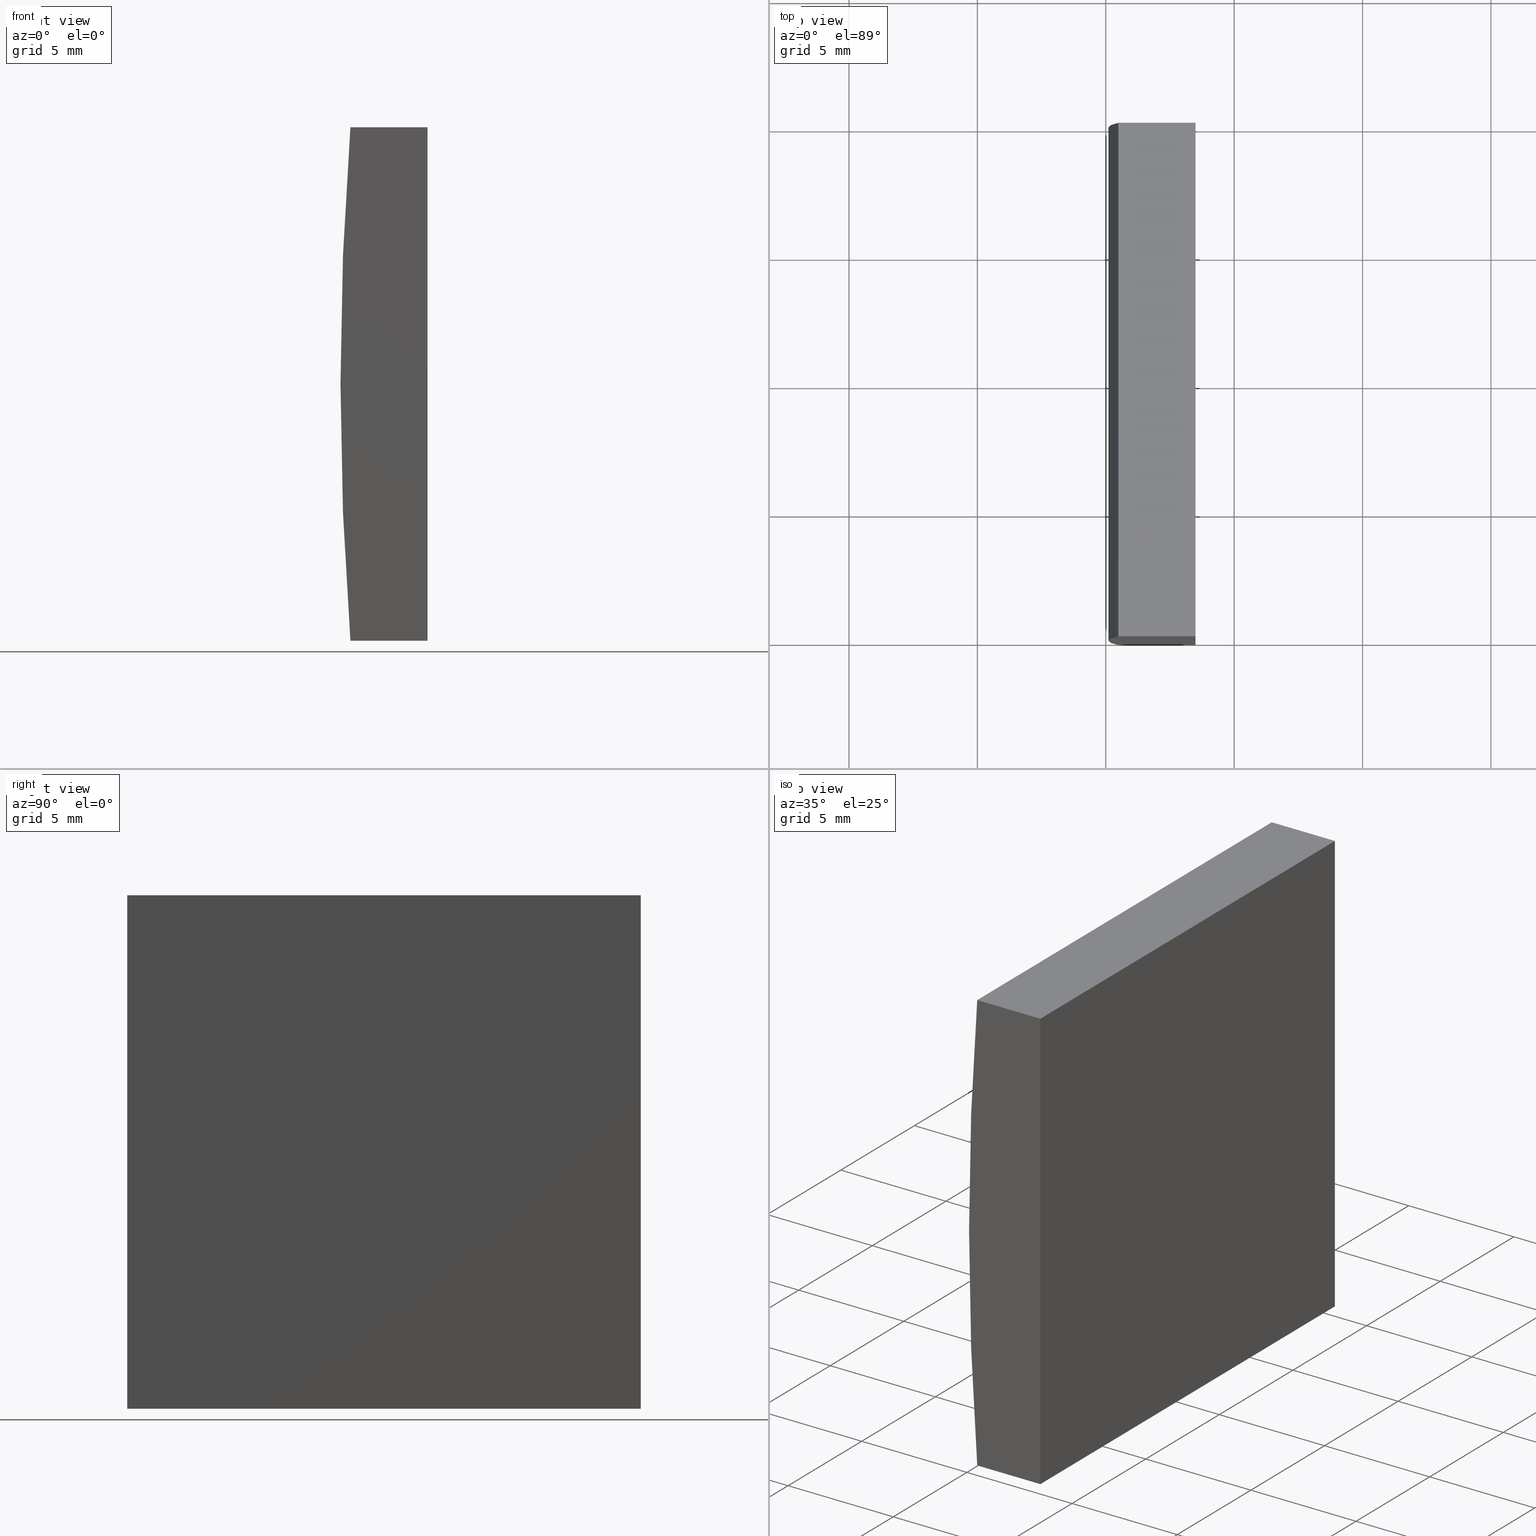
[diagram: canonical four-view strip — front | top / right | iso, engineering-drawing reading convention]
A machine part, canonical four-view strip (front | top / right | iso — engineering-drawing reading convention). The complete STEP part file that produces these views, byte-faithful:
ISO-10303-21;
HEADER;
FILE_DESCRIPTION (( 'STEP AP214' ),
    '1' );
FILE_NAME ('155034.STEP',
    '2019-06-17T07:06:26',
    ( 'user' ),
    ( '΢���й�' ),
    'SwSTEP 2.0',
    'SolidWorks 2016',
    '' );
FILE_SCHEMA (( 'AUTOMOTIVE_DESIGN' ));
ENDSEC;

DATA;
#1 = EDGE_LOOP ( 'NONE', ( #55, #82, #138, #10 ) ) ;
#2 = ORIENTED_EDGE ( 'NONE', *, *, #152, .F. ) ;
#3 = EDGE_LOOP ( 'NONE', ( #9, #2, #160, #189 ) ) ;
#4 = APPLICATION_CONTEXT ( 'automotive_design' ) ;
#5 = CLOSED_SHELL ( 'NONE', ( #146, #99, #86, #65, #96, #31 ) ) ;
#6 = PRODUCT_DEFINITION_CONTEXT ( 'detailed design', #4, 'design' ) ;
#7 = AXIS2_PLACEMENT_3D ( 'NONE', #140, #60, #180 ) ;
#8 = VECTOR ( 'NONE', #92, 1000.000000000000000 ) ;
#9 = ORIENTED_EDGE ( 'NONE', *, *, #134, .T. ) ;
#10 = ORIENTED_EDGE ( 'NONE', *, *, #77, .T. ) ;
#11 = DIRECTION ( 'NONE',  ( 0.0000000000000000000, 0.0000000000000000000, 1.000000000000000000 ) ) ;
#12 = ORIENTED_EDGE ( 'NONE', *, *, #51, .F. ) ;
#13 = ORIENTED_EDGE ( 'NONE', *, *, #115, .T. ) ;
#14 = AXIS2_PLACEMENT_3D ( 'NONE', #179, #62, #164 ) ;
#15 = CARTESIAN_POINT ( 'NONE',  ( -121.5047956651487300, 0.0000000000000000000, 10.00000000000000000 ) ) ;
#16 = ORIENTED_EDGE ( 'NONE', *, *, #187, .T. ) ;
#17 = ORIENTED_EDGE ( 'NONE', *, *, #51, .T. ) ;
#18 = CARTESIAN_POINT ( 'NONE',  ( 4.355204334851265500, 20.00000000000000000, 4.286263797015675000E-017 ) ) ;
#19 = DIRECTION ( 'NONE',  ( 1.155491619726084100E-015, -0.0000000000000000000, 1.000000000000000000 ) ) ;
#20 = AXIS2_PLACEMENT_3D ( 'NONE', #183, #19, #124 ) ;
#21 = EDGE_LOOP ( 'NONE', ( #33, #35, #12, #16 ) ) ;
#22 = VECTOR ( 'NONE', #114, 1000.000000000000000 ) ;
#23 = PRODUCT_DEFINITION_FORMATION_WITH_SPECIFIED_SOURCE ( '�κ�', '', #36, .NOT_KNOWN. ) ;
#24 = FILL_AREA_STYLE ('',( #184 ) ) ;
#25 = CIRCLE ( 'NONE', #171, 129.2500000000000000 ) ;
#26 = DIRECTION ( 'NONE',  ( -1.000000000000000000, -0.0000000000000000000, 1.155491619726083900E-015 ) ) ;
#27 = CARTESIAN_POINT ( 'NONE',  ( -124.5073678108264800, 20.00000000000000000, 10.00000000000000000 ) ) ;
#28 = VECTOR ( 'NONE', #131, 1000.000000000000000 ) ;
#29 = PLANE ( 'NONE',  #7 ) ;
#30 = VERTEX_POINT ( 'NONE', #175 ) ;
#31 = ADVANCED_FACE ( 'NONE', ( #182 ), #165, .F. ) ;
#32 = DIRECTION ( 'NONE',  ( -0.0000000000000000000, -1.000000000000000000, -0.0000000000000000000 ) ) ;
#33 = ORIENTED_EDGE ( 'NONE', *, *, #107, .T. ) ;
#34 = AXIS2_PLACEMENT_3D ( 'NONE', #198, #106, #94 ) ;
#35 = ORIENTED_EDGE ( 'NONE', *, *, #154, .F. ) ;
#36 = PRODUCT ( '155034', '155034', '', ( #162 ) ) ;
#37 =( NAMED_UNIT ( * ) PLANE_ANGLE_UNIT ( ) SI_UNIT ( $, .RADIAN. ) );
#38 = PRESENTATION_STYLE_ASSIGNMENT (( #150 ) ) ;
#39 = DIRECTION ( 'NONE',  ( -0.0000000000000000000, -0.0000000000000000000, -1.000000000000000000 ) ) ;
#40 = CARTESIAN_POINT ( 'NONE',  ( -124.5073678108264800, 20.00000000000000000, 10.00000000000000000 ) ) ;
#41 = AXIS2_PLACEMENT_3D ( 'NONE', #153, #89, #166 ) ;
#42 = UNCERTAINTY_MEASURE_WITH_UNIT (LENGTH_MEASURE( 1.000000000000000100E-005 ), #59, 'distance_accuracy_value', 'NONE');
#43 = LINE ( 'NONE', #40, #48 ) ;
#44 = FILL_AREA_STYLE_COLOUR ( '', #170 ) ;
#45 = ORIENTED_EDGE ( 'NONE', *, *, #125, .T. ) ;
#46 = ORIENTED_EDGE ( 'NONE', *, *, #158, .F. ) ;
#47 = LINE ( 'NONE', #75, #84 ) ;
#48 = VECTOR ( 'NONE', #141, 1000.000000000000000 ) ;
#49 = APPLICATION_PROTOCOL_DEFINITION ( 'draft international standard', 'automotive_design', 1998, #193 ) ;
#50 = DIRECTION ( 'NONE',  ( 0.0000000000000000000, 0.0000000000000000000, -1.000000000000000000 ) ) ;
#51 = EDGE_CURVE ( 'NONE', #130, #118, #110, .T. ) ;
#52 = EDGE_LOOP ( 'NONE', ( #45, #64, #46, #200 ) ) ;
#53 = CARTESIAN_POINT ( 'NONE',  ( -121.5047956651487300, 20.00000000000000000, -10.00000000000000400 ) ) ;
#54 = PRESENTATION_STYLE_ASSIGNMENT (( #123 ) ) ;
#55 = ORIENTED_EDGE ( 'NONE', *, *, #202, .T. ) ;
#56 = EDGE_LOOP ( 'NONE', ( #186, #91, #78, #105 ) ) ;
#57 = FACE_OUTER_BOUND ( 'NONE', #1, .T. ) ;
#58 = VERTEX_POINT ( 'NONE', #199 ) ;
#59 =( LENGTH_UNIT ( ) NAMED_UNIT ( * ) SI_UNIT ( .MILLI., .METRE. ) );
#60 = DIRECTION ( 'NONE',  ( -1.000000000000000000, 0.0000000000000000000, 0.0000000000000000000 ) ) ;
#61 = FACE_OUTER_BOUND ( 'NONE', #196, .T. ) ;
#62 = DIRECTION ( 'NONE',  ( 0.0000000000000000000, 1.000000000000000000, 0.0000000000000000000 ) ) ;
#63 = MECHANICAL_DESIGN_GEOMETRIC_PRESENTATION_REPRESENTATION (  '', ( #122 ), #176 ) ;
#64 = ORIENTED_EDGE ( 'NONE', *, *, #77, .F. ) ;
#65 = ADVANCED_FACE ( 'NONE', ( #57 ), #172, .F. ) ;
#66 = CARTESIAN_POINT ( 'NONE',  ( 4.355204334851265500, 0.0000000000000000000, 4.286263797015675000E-017 ) ) ;
#67 = CARTESIAN_POINT ( 'NONE',  ( -121.5047956651487300, 20.00000000000000000, -10.00000000000000400 ) ) ;
#68 = MECHANICAL_DESIGN_GEOMETRIC_PRESENTATION_REPRESENTATION (  '', ( #137 ), #95 ) ;
#69 = CARTESIAN_POINT ( 'NONE',  ( -124.5073678108264900, 0.0000000000000000000, -10.00000000000000000 ) ) ;
#70 = APPLICATION_PROTOCOL_DEFINITION ( 'draft international standard', 'automotive_design', 1998, #4 ) ;
#71 = FACE_OUTER_BOUND ( 'NONE', #3, .T. ) ;
#72 = VECTOR ( 'NONE', #83, 1000.000000000000000 ) ;
#73 = PRESENTATION_LAYER_ASSIGNMENT (  '', '', ( #137 ) ) ;
#74 = VERTEX_POINT ( 'NONE', #129 ) ;
#75 = CARTESIAN_POINT ( 'NONE',  ( -121.5047956651487300, 20.00000000000000000, 10.00000000000000000 ) ) ;
#76 = LINE ( 'NONE', #139, #28 ) ;
#77 = EDGE_CURVE ( 'NONE', #81, #30, #117, .T. ) ;
#78 = ORIENTED_EDGE ( 'NONE', *, *, #125, .F. ) ;
#79 = SHAPE_DEFINITION_REPRESENTATION ( #201, #132 ) ;
#80 = CARTESIAN_POINT ( 'NONE',  ( -124.5073678108264900, 20.00000000000000000, -10.00000000000000000 ) ) ;
#81 = VERTEX_POINT ( 'NONE', #157 ) ;
#82 = ORIENTED_EDGE ( 'NONE', *, *, #187, .F. ) ;
#83 = DIRECTION ( 'NONE',  ( -0.0000000000000000000, -0.0000000000000000000, -1.000000000000000000 ) ) ;
#84 = VECTOR ( 'NONE', #147, 1000.000000000000000 ) ;
#85 = FACE_OUTER_BOUND ( 'NONE', #21, .T. ) ;
#86 = ADVANCED_FACE ( 'NONE', ( #173 ), #29, .F. ) ;
#87 = VERTEX_POINT ( 'NONE', #15 ) ;
#88 = AXIS2_PLACEMENT_3D ( 'NONE', #66, #204, #143 ) ;
#89 = DIRECTION ( 'NONE',  ( 0.0000000000000000000, 0.0000000000000000000, 1.000000000000000000 ) ) ;
#90 = LINE ( 'NONE', #174, #195 ) ;
#91 = ORIENTED_EDGE ( 'NONE', *, *, #202, .F. ) ;
#92 = DIRECTION ( 'NONE',  ( 1.000000000000000000, 0.0000000000000000000, 0.0000000000000000000 ) ) ;
#93 = DIRECTION ( 'NONE',  ( 0.0000000000000000000, 1.000000000000000000, 0.0000000000000000000 ) ) ;
#94 = DIRECTION ( 'NONE',  ( 0.0000000000000000000, 0.0000000000000000000, 1.000000000000000000 ) ) ;
#95 =( GEOMETRIC_REPRESENTATION_CONTEXT ( 3 ) GLOBAL_UNCERTAINTY_ASSIGNED_CONTEXT ( ( #155 ) ) GLOBAL_UNIT_ASSIGNED_CONTEXT ( ( #108, #104, #178 ) ) REPRESENTATION_CONTEXT ( 'NONE', 'WORKASPACE' ) );
#96 = ADVANCED_FACE ( 'NONE', ( #61 ), #100, .T. ) ;
#97 = CARTESIAN_POINT ( 'NONE',  ( -124.5073678108264900, 20.00000000000000000, -10.00000000000000000 ) ) ;
#98 = VECTOR ( 'NONE', #32, 1000.000000000000000 ) ;
#99 = ADVANCED_FACE ( 'NONE', ( #71 ), #188, .F. ) ;
#100 = PLANE ( 'NONE',  #14 ) ;
#101 = PRODUCT_DEFINITION ( 'δ֪', '', #23, #6 ) ;
#102 = LINE ( 'NONE', #161, #144 ) ;
#103 = DIRECTION ( 'NONE',  ( -1.000000000000000000, 0.0000000000000000000, -0.0000000000000000000 ) ) ;
#104 =( NAMED_UNIT ( * ) PLANE_ANGLE_UNIT ( ) SI_UNIT ( $, .RADIAN. ) );
#105 = ORIENTED_EDGE ( 'NONE', *, *, #134, .F. ) ;
#106 = DIRECTION ( 'NONE',  ( 0.0000000000000000000, 1.000000000000000000, 0.0000000000000000000 ) ) ;
#107 = EDGE_CURVE ( 'NONE', #149, #74, #25, .T. ) ;
#108 =( LENGTH_UNIT ( ) NAMED_UNIT ( * ) SI_UNIT ( .MILLI., .METRE. ) );
#109 = SURFACE_STYLE_FILL_AREA ( #127 ) ;
#110 = CIRCLE ( 'NONE', #34, 129.2500000000000000 ) ;
#111 =( NAMED_UNIT ( * ) SI_UNIT ( $, .STERADIAN. ) SOLID_ANGLE_UNIT ( ) );
#112 = LINE ( 'NONE', #69, #22 ) ;
#113 = CARTESIAN_POINT ( 'NONE',  ( -124.5073678108264800, 20.00000000000000000, 10.00000000000000000 ) ) ;
#114 = DIRECTION ( 'NONE',  ( -1.000000000000000000, -0.0000000000000000000, 1.155491619726083900E-015 ) ) ;
#115 = EDGE_CURVE ( 'NONE', #81, #130, #102, .T. ) ;
#116 = LINE ( 'NONE', #67, #72 ) ;
#117 = LINE ( 'NONE', #53, #120 ) ;
#118 = VERTEX_POINT ( 'NONE', #113 ) ;
#119 = PRODUCT_RELATED_PRODUCT_CATEGORY ( 'part', '', ( #36 ) ) ;
#120 = VECTOR ( 'NONE', #185, 1000.000000000000000 ) ;
#121 = SURFACE_STYLE_FILL_AREA ( #24 ) ;
#122 = STYLED_ITEM ( 'NONE', ( #38 ), #132 ) ;
#123 = SURFACE_STYLE_USAGE ( .BOTH. , #128 ) ;
#124 = DIRECTION ( 'NONE',  ( 1.000000000000000000, 0.0000000000000000000, -1.155491619726084100E-015 ) ) ;
#125 = EDGE_CURVE ( 'NONE', #87, #30, #90, .T. ) ;
#126 =( LENGTH_UNIT ( ) NAMED_UNIT ( * ) SI_UNIT ( .MILLI., .METRE. ) );
#127 = FILL_AREA_STYLE ('',( #44 ) ) ;
#128 = SURFACE_SIDE_STYLE ('',( #109 ) ) ;
#129 = CARTESIAN_POINT ( 'NONE',  ( -124.5073678108264800, 0.0000000000000000000, 10.00000000000000000 ) ) ;
#130 = VERTEX_POINT ( 'NONE', #80 ) ;
#131 = DIRECTION ( 'NONE',  ( 1.000000000000000000, 0.0000000000000000000, 0.0000000000000000000 ) ) ;
#132 = ADVANCED_BREP_SHAPE_REPRESENTATION ( '155034', ( #191, #41 ), #190 ) ;
#133 = LINE ( 'NONE', #135, #8 ) ;
#134 = EDGE_CURVE ( 'NONE', #74, #87, #133, .T. ) ;
#135 = CARTESIAN_POINT ( 'NONE',  ( -124.5073678108264800, 0.0000000000000000000, 10.00000000000000000 ) ) ;
#136 = UNCERTAINTY_MEASURE_WITH_UNIT (LENGTH_MEASURE( 1.000000000000000100E-005 ), #126, 'distance_accuracy_value', 'NONE');
#137 = STYLED_ITEM ( 'NONE', ( #54 ), #191 ) ;
#138 = ORIENTED_EDGE ( 'NONE', *, *, #115, .F. ) ;
#139 = CARTESIAN_POINT ( 'NONE',  ( -124.5073678108264800, 20.00000000000000000, 10.00000000000000000 ) ) ;
#140 = CARTESIAN_POINT ( 'NONE',  ( -121.5047956651487300, 20.00000000000000000, -10.00000000000000400 ) ) ;
#141 = DIRECTION ( 'NONE',  ( -0.0000000000000000000, -1.000000000000000000, -0.0000000000000000000 ) ) ;
#142 = EDGE_CURVE ( 'NONE', #118, #58, #76, .T. ) ;
#143 = DIRECTION ( 'NONE',  ( 0.0000000000000000000, -0.0000000000000000000, 1.000000000000000000 ) ) ;
#144 = VECTOR ( 'NONE', #26, 1000.000000000000000 ) ;
#145 =( NAMED_UNIT ( * ) SI_UNIT ( $, .STERADIAN. ) SOLID_ANGLE_UNIT ( ) );
#146 = ADVANCED_FACE ( 'NONE', ( #85 ), #156, .T. ) ;
#147 = DIRECTION ( 'NONE',  ( -0.0000000000000000000, -1.000000000000000000, -0.0000000000000000000 ) ) ;
#148 = AXIS2_PLACEMENT_3D ( 'NONE', #18, #169, #50 ) ;
#149 = VERTEX_POINT ( 'NONE', #168 ) ;
#150 = SURFACE_STYLE_USAGE ( .BOTH. , #194 ) ;
#151 = ORIENTED_EDGE ( 'NONE', *, *, #142, .T. ) ;
#152 = EDGE_CURVE ( 'NONE', #58, #87, #47, .T. ) ;
#153 = CARTESIAN_POINT ( 'NONE',  ( 0.0000000000000000000, 0.0000000000000000000, 0.0000000000000000000 ) ) ;
#154 = EDGE_CURVE ( 'NONE', #118, #74, #43, .T. ) ;
#155 = UNCERTAINTY_MEASURE_WITH_UNIT (LENGTH_MEASURE( 1.000000000000000100E-005 ), #108, 'distance_accuracy_value', 'NONE');
#156 = CYLINDRICAL_SURFACE ( 'NONE', #148, 129.2500000000000000 ) ;
#157 = CARTESIAN_POINT ( 'NONE',  ( -121.5047956651487300, 20.00000000000000000, -10.00000000000000400 ) ) ;
#158 = EDGE_CURVE ( 'NONE', #58, #81, #116, .T. ) ;
#159 = COLOUR_RGB ( '',1.000000000000000000, 1.000000000000000000, 1.000000000000000000 ) ;
#160 = ORIENTED_EDGE ( 'NONE', *, *, #142, .F. ) ;
#161 = CARTESIAN_POINT ( 'NONE',  ( -124.5073678108264900, 20.00000000000000000, -10.00000000000000000 ) ) ;
#162 = PRODUCT_CONTEXT ( 'NONE', #193, 'mechanical' ) ;
#163 =( NAMED_UNIT ( * ) PLANE_ANGLE_UNIT ( ) SI_UNIT ( $, .RADIAN. ) );
#164 = DIRECTION ( 'NONE',  ( 0.0000000000000000000, -0.0000000000000000000, 1.000000000000000000 ) ) ;
#165 = PLANE ( 'NONE',  #88 ) ;
#166 = DIRECTION ( 'NONE',  ( 1.000000000000000000, 0.0000000000000000000, 0.0000000000000000000 ) ) ;
#167 = AXIS2_PLACEMENT_3D ( 'NONE', #27, #181, #103 ) ;
#168 = CARTESIAN_POINT ( 'NONE',  ( -124.5073678108264900, 0.0000000000000000000, -10.00000000000000000 ) ) ;
#169 = DIRECTION ( 'NONE',  ( -0.0000000000000000000, -1.000000000000000000, -0.0000000000000000000 ) ) ;
#170 = COLOUR_RGB ( '',1.000000000000000000, 1.000000000000000000, 1.000000000000000000 ) ;
#171 = AXIS2_PLACEMENT_3D ( 'NONE', #192, #93, #11 ) ;
#172 = PLANE ( 'NONE',  #20 ) ;
#173 = FACE_OUTER_BOUND ( 'NONE', #52, .T. ) ;
#174 = CARTESIAN_POINT ( 'NONE',  ( -121.5047956651487300, 0.0000000000000000000, -10.00000000000000400 ) ) ;
#175 = CARTESIAN_POINT ( 'NONE',  ( -121.5047956651487300, 0.0000000000000000000, -10.00000000000000400 ) ) ;
#176 =( GEOMETRIC_REPRESENTATION_CONTEXT ( 3 ) GLOBAL_UNCERTAINTY_ASSIGNED_CONTEXT ( ( #136 ) ) GLOBAL_UNIT_ASSIGNED_CONTEXT ( ( #126, #163, #111 ) ) REPRESENTATION_CONTEXT ( 'NONE', 'WORKASPACE' ) );
#177 = ORIENTED_EDGE ( 'NONE', *, *, #158, .T. ) ;
#178 =( NAMED_UNIT ( * ) SI_UNIT ( $, .STERADIAN. ) SOLID_ANGLE_UNIT ( ) );
#179 = CARTESIAN_POINT ( 'NONE',  ( 4.355204334851265500, 20.00000000000000000, 4.286263797015675000E-017 ) ) ;
#180 = DIRECTION ( 'NONE',  ( 0.0000000000000000000, 0.0000000000000000000, 1.000000000000000000 ) ) ;
#181 = DIRECTION ( 'NONE',  ( 0.0000000000000000000, 0.0000000000000000000, -1.000000000000000000 ) ) ;
#182 = FACE_OUTER_BOUND ( 'NONE', #56, .T. ) ;
#183 = CARTESIAN_POINT ( 'NONE',  ( -124.5073678108264900, 20.00000000000000000, -10.00000000000000000 ) ) ;
#184 = FILL_AREA_STYLE_COLOUR ( '', #159 ) ;
#185 = DIRECTION ( 'NONE',  ( -0.0000000000000000000, -1.000000000000000000, -0.0000000000000000000 ) ) ;
#186 = ORIENTED_EDGE ( 'NONE', *, *, #107, .F. ) ;
#187 = EDGE_CURVE ( 'NONE', #130, #149, #203, .T. ) ;
#188 = PLANE ( 'NONE',  #167 ) ;
#189 = ORIENTED_EDGE ( 'NONE', *, *, #154, .T. ) ;
#190 =( GEOMETRIC_REPRESENTATION_CONTEXT ( 3 ) GLOBAL_UNCERTAINTY_ASSIGNED_CONTEXT ( ( #42 ) ) GLOBAL_UNIT_ASSIGNED_CONTEXT ( ( #59, #37, #145 ) ) REPRESENTATION_CONTEXT ( 'NONE', 'WORKASPACE' ) );
#191 = MANIFOLD_SOLID_BREP ( '͹̨-����1', #5 ) ;
#192 = CARTESIAN_POINT ( 'NONE',  ( 4.355204334851265500, 0.0000000000000000000, 4.286263797015675000E-017 ) ) ;
#193 = APPLICATION_CONTEXT ( 'automotive_design' ) ;
#194 = SURFACE_SIDE_STYLE ('',( #121 ) ) ;
#195 = VECTOR ( 'NONE', #39, 1000.000000000000000 ) ;
#196 = EDGE_LOOP ( 'NONE', ( #17, #151, #177, #13 ) ) ;
#197 = PRESENTATION_LAYER_ASSIGNMENT (  '', '', ( #122 ) ) ;
#198 = CARTESIAN_POINT ( 'NONE',  ( 4.355204334851265500, 20.00000000000000000, 4.286263797015675000E-017 ) ) ;
#199 = CARTESIAN_POINT ( 'NONE',  ( -121.5047956651487300, 20.00000000000000000, 10.00000000000000000 ) ) ;
#200 = ORIENTED_EDGE ( 'NONE', *, *, #152, .T. ) ;
#201 = PRODUCT_DEFINITION_SHAPE ( 'NONE', 'NONE',  #101 ) ;
#202 = EDGE_CURVE ( 'NONE', #30, #149, #112, .T. ) ;
#203 = LINE ( 'NONE', #97, #98 ) ;
#204 = DIRECTION ( 'NONE',  ( 0.0000000000000000000, 1.000000000000000000, 0.0000000000000000000 ) ) ;
ENDSEC;
END-ISO-10303-21;
